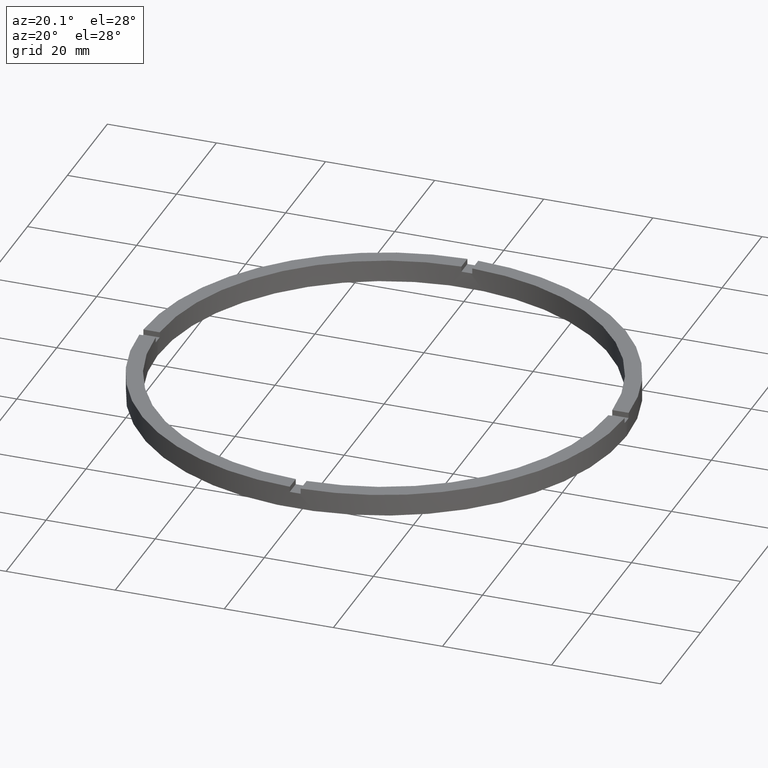
[diagram: clean part render]
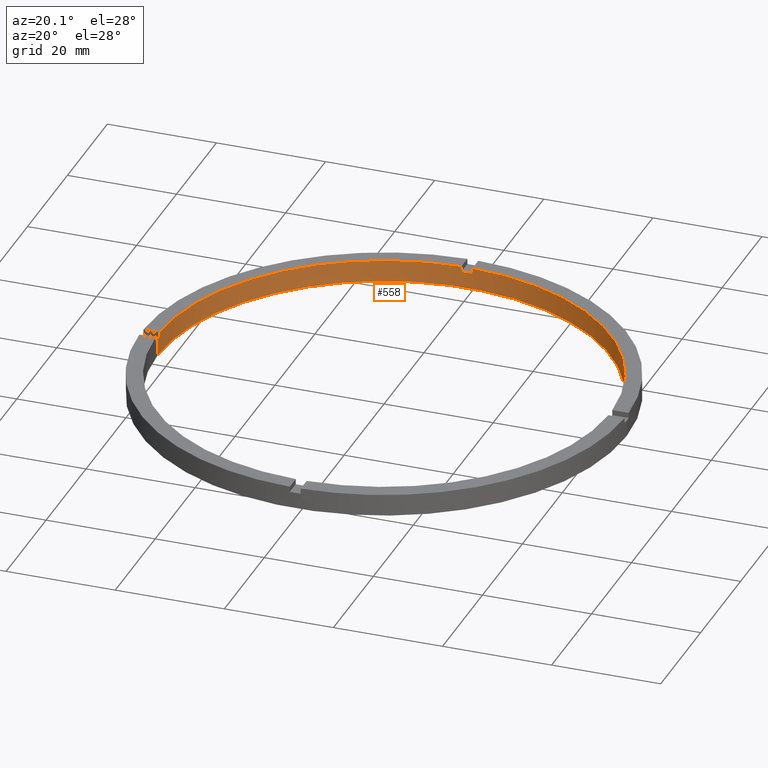
[diagram: same view with one face highlighted and labeled with its STEP entity id]
A machine part, auxiliary view. The second image highlights one B-rep face of the part: STEP entity #558.
In plain terms, the highlighted cylindrical surface (partial cylindrical patch) has radius 41.5 mm, axis along (-0, -0, -1).
Its self-contained STEP definition (entity closure, byte-faithful):
#5 = CARTESIAN_POINT ( 'NONE',  ( 0.000000000000000000, 0.000000000000000000, 4.000000000000000000 ) ) ;
#9 = CARTESIAN_POINT ( 'NONE',  ( -41.48795005781799716, 0.9999999999999709122, 4.000000000000000000 ) ) ;
#20 = VERTEX_POINT ( 'NONE', #751 ) ;
#21 = DIRECTION ( 'NONE',  ( 0.000000000000000000, 0.000000000000000000, 1.000000000000000000 ) ) ;
#36 = EDGE_CURVE ( 'NONE', #615, #423, #655, .T. ) ;
#43 = VERTEX_POINT ( 'NONE', #462 ) ;
#46 = VERTEX_POINT ( 'NONE', #365 ) ;
#51 = CARTESIAN_POINT ( 'NONE',  ( -41.50000000000000000, 0.000000000000000000, 4.000000000000000000 ) ) ;
#61 = DIRECTION ( 'NONE',  ( -0.000000000000000000, -0.000000000000000000, -1.000000000000000000 ) ) ;
#71 = EDGE_CURVE ( 'NONE', #94, #215, #136, .T. ) ;
#84 = DIRECTION ( 'NONE',  ( -0.000000000000000000, -0.000000000000000000, -1.000000000000000000 ) ) ;
#90 = EDGE_CURVE ( 'NONE', #521, #562, #110, .T. ) ;
#94 = VERTEX_POINT ( 'NONE', #430 ) ;
#96 = AXIS2_PLACEMENT_3D ( 'NONE', #603, #305, #345 ) ;
#100 = ORIENTED_EDGE ( 'NONE', *, *, #307, .F. ) ;
#101 = EDGE_CURVE ( 'NONE', #521, #266, #648, .T. ) ;
#110 = LINE ( 'NONE', #553, #138 ) ;
#118 = LINE ( 'NONE', #51, #666 ) ;
#136 = CIRCLE ( 'NONE', #96, 41.50000000000000000 ) ;
#138 = VECTOR ( 'NONE', #489, 1000.000000000000000 ) ;
#161 = FACE_OUTER_BOUND ( 'NONE', #778, .T. ) ;
#167 = CARTESIAN_POINT ( 'NONE',  ( 0.000000000000000000, 0.000000000000000000, 0.000000000000000000 ) ) ;
#175 = CYLINDRICAL_SURFACE ( 'NONE', #330, 41.50000000000000000 ) ;
#183 = CIRCLE ( 'NONE', #749, 41.50000000000000000 ) ;
#192 = CARTESIAN_POINT ( 'NONE',  ( 0.000000000000000000, 0.000000000000000000, 3.000000000000000000 ) ) ;
#196 = VERTEX_POINT ( 'NONE', #329 ) ;
#207 = CARTESIAN_POINT ( 'NONE',  ( 41.48795005781800427, 0.9999999999998436806, 3.000000000000000000 ) ) ;
#211 = EDGE_CURVE ( 'NONE', #20, #43, #682, .T. ) ;
#215 = VERTEX_POINT ( 'NONE', #392 ) ;
#218 = DIRECTION ( 'NONE',  ( 0.000000000000000000, -0.000000000000000000, 1.000000000000000000 ) ) ;
#227 = DIRECTION ( 'NONE',  ( 0.000000000000000000, 0.000000000000000000, 1.000000000000000000 ) ) ;
#243 = ORIENTED_EDGE ( 'NONE', *, *, #36, .T. ) ;
#245 = EDGE_CURVE ( 'NONE', #562, #646, #376, .T. ) ;
#266 = VERTEX_POINT ( 'NONE', #207 ) ;
#277 = CARTESIAN_POINT ( 'NONE',  ( -41.50000000000000000, 0.000000000000000000, 0.000000000000000000 ) ) ;
#278 = CARTESIAN_POINT ( 'NONE',  ( 0.000000000000000000, 0.000000000000000000, 3.000000000000000000 ) ) ;
#285 = DIRECTION ( 'NONE',  ( -1.000000000000000000, 0.000000000000000000, 0.000000000000000000 ) ) ;
#292 = ORIENTED_EDGE ( 'NONE', *, *, #473, .T. ) ;
#293 = ORIENTED_EDGE ( 'NONE', *, *, #90, .F. ) ;
#294 = ORIENTED_EDGE ( 'NONE', *, *, #245, .F. ) ;
#305 = DIRECTION ( 'NONE',  ( 0.000000000000000000, 0.000000000000000000, 1.000000000000000000 ) ) ;
#307 = EDGE_CURVE ( 'NONE', #615, #215, #683, .T. ) ;
#323 = CARTESIAN_POINT ( 'NONE',  ( 0.000000000000000000, 0.000000000000000000, 3.000000000000000000 ) ) ;
#329 = CARTESIAN_POINT ( 'NONE',  ( -1.000000000000025979, 41.48795005781799716, 4.000000000000000000 ) ) ;
#330 = AXIS2_PLACEMENT_3D ( 'NONE', #5, #61, #285 ) ;
#334 = CARTESIAN_POINT ( 'NONE',  ( 41.48795005781800427, 0.9999999999998436806, 4.000000000000000000 ) ) ;
#336 = DIRECTION ( 'NONE',  ( -0.000000000000000000, -0.000000000000000000, -1.000000000000000000 ) ) ;
#345 = DIRECTION ( 'NONE',  ( 1.000000000000000000, 0.000000000000000000, 0.000000000000000000 ) ) ;
#348 = ORIENTED_EDGE ( 'NONE', *, *, #694, .F. ) ;
#365 = CARTESIAN_POINT ( 'NONE',  ( -41.50000000000000000, 0.000000000000000000, 3.000000000000000000 ) ) ;
#376 = CIRCLE ( 'NONE', #535, 41.50000000000000000 ) ;
#392 = CARTESIAN_POINT ( 'NONE',  ( 0.9999999999999740208, 41.48795005781799716, 4.000000000000000000 ) ) ;
#393 = VECTOR ( 'NONE', #577, 1000.000000000000000 ) ;
#394 = VECTOR ( 'NONE', #227, 1000.000000000000000 ) ;
#416 = EDGE_CURVE ( 'NONE', #46, #646, #118, .T. ) ;
#423 = VERTEX_POINT ( 'NONE', #472 ) ;
#429 = LINE ( 'NONE', #334, #444 ) ;
#430 = CARTESIAN_POINT ( 'NONE',  ( 41.48795005781800427, 0.9999999999998436806, 4.000000000000000000 ) ) ;
#431 = ORIENTED_EDGE ( 'NONE', *, *, #730, .T. ) ;
#435 = VECTOR ( 'NONE', #768, 1000.000000000000000 ) ;
#444 = VECTOR ( 'NONE', #336, 1000.000000000000000 ) ;
#462 = CARTESIAN_POINT ( 'NONE',  ( -41.48795005781799716, 0.9999999999999709122, 4.000000000000000000 ) ) ;
#472 = CARTESIAN_POINT ( 'NONE',  ( -1.000000000000025979, 41.48795005781799716, 3.000000000000000000 ) ) ;
#473 = EDGE_CURVE ( 'NONE', #20, #46, #690, .T. ) ;
#478 = CARTESIAN_POINT ( 'NONE',  ( 0.000000000000000000, 0.000000000000000000, 4.000000000000000000 ) ) ;
#489 = DIRECTION ( 'NONE',  ( -0.000000000000000000, -0.000000000000000000, -1.000000000000000000 ) ) ;
#497 = ORIENTED_EDGE ( 'NONE', *, *, #676, .F. ) ;
#518 = ORIENTED_EDGE ( 'NONE', *, *, #71, .T. ) ;
#521 = VERTEX_POINT ( 'NONE', #661 ) ;
#533 = DIRECTION ( 'NONE',  ( 1.000000000000000000, 0.000000000000000000, 0.000000000000000000 ) ) ;
#535 = AXIS2_PLACEMENT_3D ( 'NONE', #167, #537, #735 ) ;
#537 = DIRECTION ( 'NONE',  ( 0.000000000000000000, 0.000000000000000000, 1.000000000000000000 ) ) ;
#553 = CARTESIAN_POINT ( 'NONE',  ( 41.50000000000000000, 5.082284216461515748E-15, 4.000000000000000000 ) ) ;
#558 = ADVANCED_FACE ( 'NONE', ( #161 ), #175, .F. ) ;
#562 = VERTEX_POINT ( 'NONE', #592 ) ;
#566 = DIRECTION ( 'NONE',  ( 1.000000000000000000, 0.000000000000000000, 0.000000000000000000 ) ) ;
#577 = DIRECTION ( 'NONE',  ( 0.000000000000000000, 0.000000000000000000, 1.000000000000000000 ) ) ;
#578 = AXIS2_PLACEMENT_3D ( 'NONE', #323, #218, #583 ) ;
#583 = DIRECTION ( 'NONE',  ( 1.000000000000000000, 0.000000000000000000, 0.000000000000000000 ) ) ;
#592 = CARTESIAN_POINT ( 'NONE',  ( 41.50000000000000000, 5.082284216461515748E-15, 0.000000000000000000 ) ) ;
#594 = DIRECTION ( 'NONE',  ( 0.000000000000000000, 0.000000000000000000, 1.000000000000000000 ) ) ;
#595 = DIRECTION ( 'NONE',  ( 1.000000000000000000, 0.000000000000000000, 0.000000000000000000 ) ) ;
#600 = AXIS2_PLACEMENT_3D ( 'NONE', #278, #594, #533 ) ;
#603 = CARTESIAN_POINT ( 'NONE',  ( 0.000000000000000000, 0.000000000000000000, 4.000000000000000000 ) ) ;
#607 = DIRECTION ( 'NONE',  ( 0.000000000000000000, 0.000000000000000000, 1.000000000000000000 ) ) ;
#615 = VERTEX_POINT ( 'NONE', #724 ) ;
#635 = CARTESIAN_POINT ( 'NONE',  ( 0.9999999999999740208, 41.48795005781799716, 4.000000000000000000 ) ) ;
#646 = VERTEX_POINT ( 'NONE', #277 ) ;
#648 = CIRCLE ( 'NONE', #760, 41.50000000000000000 ) ;
#655 = CIRCLE ( 'NONE', #578, 41.50000000000000000 ) ;
#661 = CARTESIAN_POINT ( 'NONE',  ( 41.50000000000000000, 5.082284216461515748E-15, 3.000000000000000000 ) ) ;
#666 = VECTOR ( 'NONE', #84, 1000.000000000000000 ) ;
#676 = EDGE_CURVE ( 'NONE', #196, #423, #723, .T. ) ;
#682 = LINE ( 'NONE', #9, #394 ) ;
#683 = LINE ( 'NONE', #635, #393 ) ;
#690 = CIRCLE ( 'NONE', #600, 41.50000000000000000 ) ;
#694 = EDGE_CURVE ( 'NONE', #94, #266, #429, .T. ) ;
#698 = ORIENTED_EDGE ( 'NONE', *, *, #416, .T. ) ;
#702 = CARTESIAN_POINT ( 'NONE',  ( -1.000000000000025979, 41.48795005781799716, 4.000000000000000000 ) ) ;
#720 = ORIENTED_EDGE ( 'NONE', *, *, #211, .F. ) ;
#723 = LINE ( 'NONE', #702, #435 ) ;
#724 = CARTESIAN_POINT ( 'NONE',  ( 0.9999999999999740208, 41.48795005781799716, 3.000000000000000000 ) ) ;
#730 = EDGE_CURVE ( 'NONE', #196, #43, #183, .T. ) ;
#735 = DIRECTION ( 'NONE',  ( 1.000000000000000000, 0.000000000000000000, 0.000000000000000000 ) ) ;
#749 = AXIS2_PLACEMENT_3D ( 'NONE', #478, #21, #595 ) ;
#751 = CARTESIAN_POINT ( 'NONE',  ( -41.48795005781799716, 0.9999999999999709122, 3.000000000000000000 ) ) ;
#760 = AXIS2_PLACEMENT_3D ( 'NONE', #192, #607, #566 ) ;
#768 = DIRECTION ( 'NONE',  ( -0.000000000000000000, -0.000000000000000000, -1.000000000000000000 ) ) ;
#778 = EDGE_LOOP ( 'NONE', ( #293, #781, #348, #518, #100, #243, #497, #431, #720, #292, #698, #294 ) ) ;
#781 = ORIENTED_EDGE ( 'NONE', *, *, #101, .T. ) ;